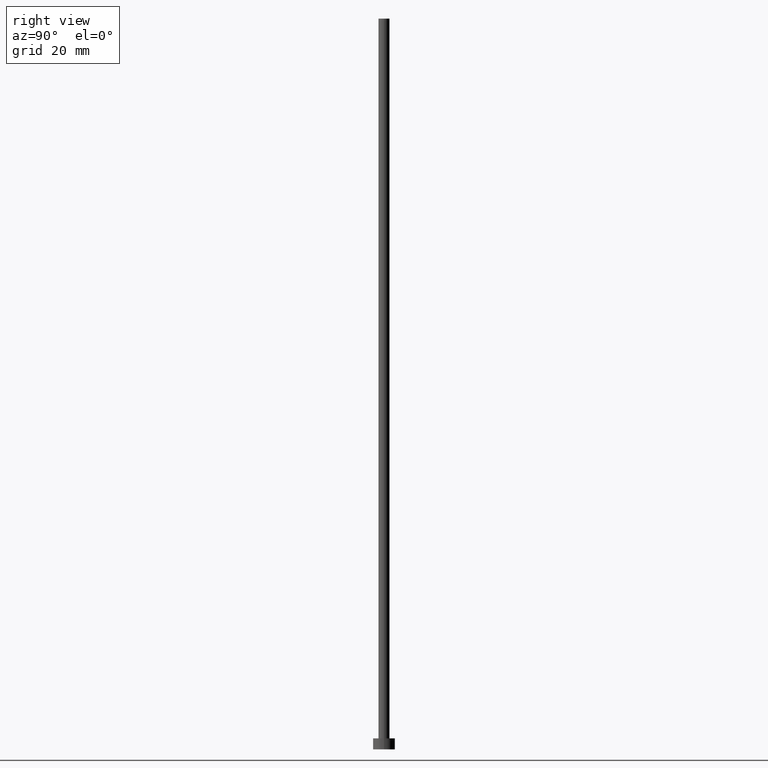
[diagram: clean part render]
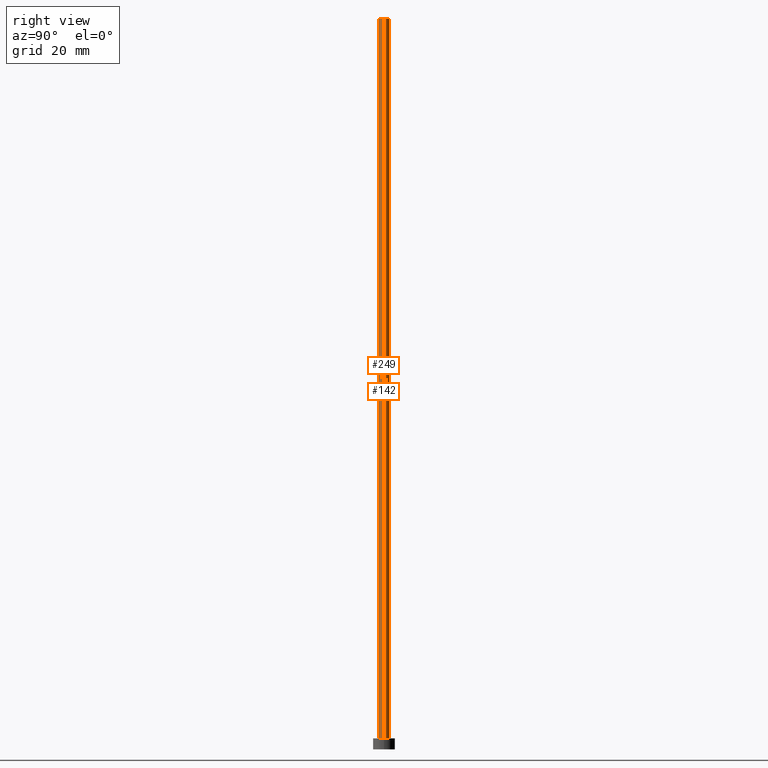
[diagram: same view with one multi-face feature highlighted, each face labeled with its STEP entity id]
A machine part, right view. The highlighted faces form ONE feature: a constant-radius fillet chain: 2 tangent blend faces with common blend radius 1.5 mm. The faces share edges in the B-rep.
Their STEP definitions:
[1] entity #142 (Cylinder):
#2 = ORIENTED_EDGE ( 'NONE', *, *, #190, .T. ) ;
#5 = CARTESIAN_POINT ( 'NONE',  ( 1.500000000000000222, 1.836970198721030181E-16, 200.0000000000000000 ) ) ;
#6 = VERTEX_POINT ( 'NONE', #5 ) ;
#8 = DIRECTION ( 'NONE',  ( -1.000000000000000000, 0.000000000000000000, 0.000000000000000000 ) ) ;
#10 = DIRECTION ( 'NONE',  ( 0.000000000000000000, 0.000000000000000000, 1.000000000000000000 ) ) ;
#11 = CARTESIAN_POINT ( 'NONE',  ( -1.500000000000000222, 0.000000000000000000, 200.0000000000000000 ) ) ;
#12 = CARTESIAN_POINT ( 'NONE',  ( -1.500000000000000222, 0.000000000000000000, 200.0000000000000000 ) ) ;
#13 = AXIS2_PLACEMENT_3D ( 'NONE', #248, #10, #78 ) ;
#19 = EDGE_CURVE ( 'NONE', #68, #195, #31, .T. ) ;
#31 = LINE ( 'NONE', #11, #122 ) ;
#47 = CARTESIAN_POINT ( 'NONE',  ( 0.000000000000000000, 0.000000000000000000, 200.0000000000000000 ) ) ;
#50 = CARTESIAN_POINT ( 'NONE',  ( -1.500000000000000222, 0.000000000000000000, 3.000000000000000000 ) ) ;
#57 = CARTESIAN_POINT ( 'NONE',  ( 0.000000000000000000, 0.000000000000000000, 200.0000000000000000 ) ) ;
#67 = EDGE_CURVE ( 'NONE', #149, #195, #116, .T. ) ;
#68 = VERTEX_POINT ( 'NONE', #12 ) ;
#78 = DIRECTION ( 'NONE',  ( 1.000000000000000000, 0.000000000000000000, 0.000000000000000000 ) ) ;
#82 = DIRECTION ( 'NONE',  ( -0.000000000000000000, -0.000000000000000000, -1.000000000000000000 ) ) ;
#100 = DIRECTION ( 'NONE',  ( 1.000000000000000000, 0.000000000000000000, 0.000000000000000000 ) ) ;
#116 = CIRCLE ( 'NONE', #13, 1.500000000000000222 ) ;
#122 = VECTOR ( 'NONE', #221, 1000.000000000000000 ) ;
#134 = ORIENTED_EDGE ( 'NONE', *, *, #67, .T. ) ;
#140 = CYLINDRICAL_SURFACE ( 'NONE', #222, 1.500000000000000222 ) ;
#142 = ADVANCED_FACE ( 'NONE', ( #165 ), #140, .T. ) ;
#147 = DIRECTION ( 'NONE',  ( -0.000000000000000000, -0.000000000000000000, -1.000000000000000000 ) ) ;
#149 = VERTEX_POINT ( 'NONE', #226 ) ;
#150 = CARTESIAN_POINT ( 'NONE',  ( 1.500000000000000222, 1.836970198721030181E-16, 200.0000000000000000 ) ) ;
#161 = EDGE_LOOP ( 'NONE', ( #181, #2, #134, #197 ) ) ;
#165 = FACE_OUTER_BOUND ( 'NONE', #161, .T. ) ;
#168 = EDGE_CURVE ( 'NONE', #6, #68, #200, .T. ) ;
#181 = ORIENTED_EDGE ( 'NONE', *, *, #168, .F. ) ;
#184 = LINE ( 'NONE', #150, #211 ) ;
#190 = EDGE_CURVE ( 'NONE', #6, #149, #184, .T. ) ;
#195 = VERTEX_POINT ( 'NONE', #50 ) ;
#197 = ORIENTED_EDGE ( 'NONE', *, *, #19, .F. ) ;
#200 = CIRCLE ( 'NONE', #254, 1.500000000000000222 ) ;
#211 = VECTOR ( 'NONE', #82, 1000.000000000000000 ) ;
#221 = DIRECTION ( 'NONE',  ( -0.000000000000000000, -0.000000000000000000, -1.000000000000000000 ) ) ;
#222 = AXIS2_PLACEMENT_3D ( 'NONE', #47, #147, #8 ) ;
#223 = DIRECTION ( 'NONE',  ( 0.000000000000000000, 0.000000000000000000, 1.000000000000000000 ) ) ;
#226 = CARTESIAN_POINT ( 'NONE',  ( 1.500000000000000222, 1.836970198721030181E-16, 3.000000000000000000 ) ) ;
#248 = CARTESIAN_POINT ( 'NONE',  ( 0.000000000000000000, 0.000000000000000000, 3.000000000000000000 ) ) ;
#254 = AXIS2_PLACEMENT_3D ( 'NONE', #57, #223, #100 ) ;
[2] entity #249 (Cylinder):
#3 = CIRCLE ( 'NONE', #89, 1.500000000000000222 ) ;
#5 = CARTESIAN_POINT ( 'NONE',  ( 1.500000000000000222, 1.836970198721030181E-16, 200.0000000000000000 ) ) ;
#6 = VERTEX_POINT ( 'NONE', #5 ) ;
#11 = CARTESIAN_POINT ( 'NONE',  ( -1.500000000000000222, 0.000000000000000000, 200.0000000000000000 ) ) ;
#12 = CARTESIAN_POINT ( 'NONE',  ( -1.500000000000000222, 0.000000000000000000, 200.0000000000000000 ) ) ;
#17 = DIRECTION ( 'NONE',  ( -0.000000000000000000, -0.000000000000000000, -1.000000000000000000 ) ) ;
#19 = EDGE_CURVE ( 'NONE', #68, #195, #31, .T. ) ;
#31 = LINE ( 'NONE', #11, #122 ) ;
#35 = DIRECTION ( 'NONE',  ( 1.000000000000000000, 0.000000000000000000, 0.000000000000000000 ) ) ;
#50 = CARTESIAN_POINT ( 'NONE',  ( -1.500000000000000222, 0.000000000000000000, 3.000000000000000000 ) ) ;
#53 = DIRECTION ( 'NONE',  ( -1.000000000000000000, 0.000000000000000000, 0.000000000000000000 ) ) ;
#64 = CYLINDRICAL_SURFACE ( 'NONE', #135, 1.500000000000000222 ) ;
#68 = VERTEX_POINT ( 'NONE', #12 ) ;
#82 = DIRECTION ( 'NONE',  ( -0.000000000000000000, -0.000000000000000000, -1.000000000000000000 ) ) ;
#84 = FACE_OUTER_BOUND ( 'NONE', #229, .T. ) ;
#89 = AXIS2_PLACEMENT_3D ( 'NONE', #191, #148, #35 ) ;
#122 = VECTOR ( 'NONE', #221, 1000.000000000000000 ) ;
#130 = DIRECTION ( 'NONE',  ( 1.000000000000000000, 0.000000000000000000, 0.000000000000000000 ) ) ;
#132 = CARTESIAN_POINT ( 'NONE',  ( 0.000000000000000000, 0.000000000000000000, 3.000000000000000000 ) ) ;
#135 = AXIS2_PLACEMENT_3D ( 'NONE', #215, #17, #53 ) ;
#148 = DIRECTION ( 'NONE',  ( 0.000000000000000000, 0.000000000000000000, 1.000000000000000000 ) ) ;
#149 = VERTEX_POINT ( 'NONE', #226 ) ;
#150 = CARTESIAN_POINT ( 'NONE',  ( 1.500000000000000222, 1.836970198721030181E-16, 200.0000000000000000 ) ) ;
#152 = ORIENTED_EDGE ( 'NONE', *, *, #201, .T. ) ;
#173 = ORIENTED_EDGE ( 'NONE', *, *, #227, .F. ) ;
#184 = LINE ( 'NONE', #150, #211 ) ;
#189 = DIRECTION ( 'NONE',  ( 0.000000000000000000, 0.000000000000000000, 1.000000000000000000 ) ) ;
#190 = EDGE_CURVE ( 'NONE', #6, #149, #184, .T. ) ;
#191 = CARTESIAN_POINT ( 'NONE',  ( 0.000000000000000000, 0.000000000000000000, 200.0000000000000000 ) ) ;
#195 = VERTEX_POINT ( 'NONE', #50 ) ;
#201 = EDGE_CURVE ( 'NONE', #195, #149, #202, .T. ) ;
#202 = CIRCLE ( 'NONE', #245, 1.500000000000000222 ) ;
#211 = VECTOR ( 'NONE', #82, 1000.000000000000000 ) ;
#215 = CARTESIAN_POINT ( 'NONE',  ( 0.000000000000000000, 0.000000000000000000, 200.0000000000000000 ) ) ;
#221 = DIRECTION ( 'NONE',  ( -0.000000000000000000, -0.000000000000000000, -1.000000000000000000 ) ) ;
#226 = CARTESIAN_POINT ( 'NONE',  ( 1.500000000000000222, 1.836970198721030181E-16, 3.000000000000000000 ) ) ;
#227 = EDGE_CURVE ( 'NONE', #68, #6, #3, .T. ) ;
#229 = EDGE_LOOP ( 'NONE', ( #242, #173, #234, #152 ) ) ;
#234 = ORIENTED_EDGE ( 'NONE', *, *, #19, .T. ) ;
#242 = ORIENTED_EDGE ( 'NONE', *, *, #190, .F. ) ;
#245 = AXIS2_PLACEMENT_3D ( 'NONE', #132, #189, #130 ) ;
#249 = ADVANCED_FACE ( 'NONE', ( #84 ), #64, .T. ) ;